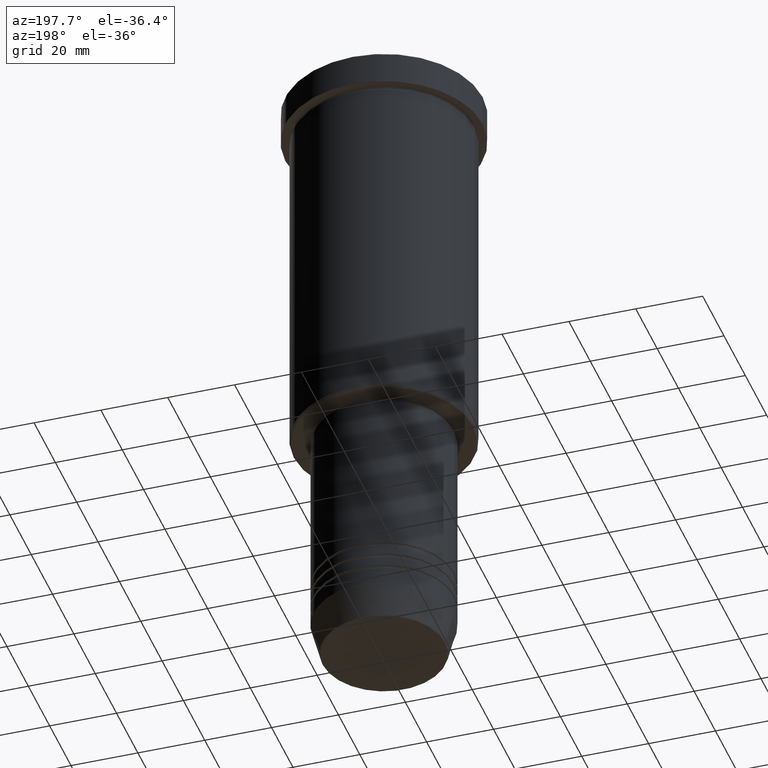
[diagram: clean part render]
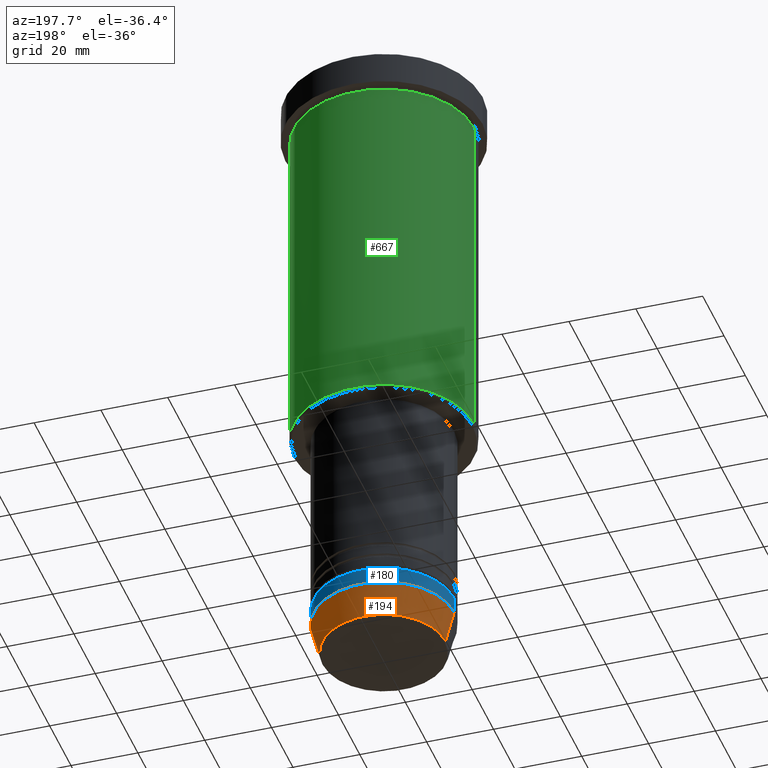
[diagram: same view with three faces highlighted in distinct colors, each labeled with its STEP entity id]
A machine part, auxiliary view with three faces highlighted in distinct colors.
Their STEP definitions:

[orange] entity #194 — the highlighted conical surface has half-angle 15 deg.
#7 = CARTESIAN_POINT ( 'NONE',  ( 0.000000000000000000, 0.000000000000000000, -190.6294095225512706 ) ) ;
#25 = LINE ( 'NONE', #397, #940 ) ;
#124 = CARTESIAN_POINT ( 'NONE',  ( 0.000000000000000000, 0.000000000000000000, -181.0000000000000000 ) ) ;
#153 = ORIENTED_EDGE ( 'NONE', *, *, #937, .F. ) ;
#191 = ORIENTED_EDGE ( 'NONE', *, *, #439, .F. ) ;
#194 = ADVANCED_FACE ( 'NONE', ( #1122 ), #739, .T. ) ;
#203 = CARTESIAN_POINT ( 'NONE',  ( 21.00000000000000000, 0.000000000000000000, -181.0000000000000000 ) ) ;
#207 = ORIENTED_EDGE ( 'NONE', *, *, #905, .T. ) ;
#287 = LINE ( 'NONE', #203, #718 ) ;
#290 = CARTESIAN_POINT ( 'NONE',  ( -18.41980749484383040, 2.413767053578267064E-15, -190.6294095225512706 ) ) ;
#307 = CARTESIAN_POINT ( 'NONE',  ( 0.000000000000000000, 0.000000000000000000, -181.0000000000000000 ) ) ;
#326 = VERTEX_POINT ( 'NONE', #614 ) ;
#347 = DIRECTION ( 'NONE',  ( -0.000000000000000000, -0.000000000000000000, 1.000000000000000000 ) ) ;
#353 = VERTEX_POINT ( 'NONE', #889 ) ;
#380 = DIRECTION ( 'NONE',  ( 1.000000000000000000, 0.000000000000000000, 0.000000000000000000 ) ) ;
#397 = CARTESIAN_POINT ( 'NONE',  ( -21.00000000000000000, 2.571758278209441661E-15, -181.0000000000000000 ) ) ;
#439 = EDGE_CURVE ( 'NONE', #326, #802, #287, .T. ) ;
#492 = EDGE_CURVE ( 'NONE', #903, #353, #25, .T. ) ;
#527 = CIRCLE ( 'NONE', #789, 21.00000000000000000 ) ;
#591 = EDGE_LOOP ( 'NONE', ( #207, #972, #153, #191 ) ) ;
#614 = CARTESIAN_POINT ( 'NONE',  ( 18.41980749484383040, 0.000000000000000000, -190.6294095225512706 ) ) ;
#644 = CIRCLE ( 'NONE', #681, 18.41980749484383040 ) ;
#647 = CARTESIAN_POINT ( 'NONE',  ( 21.00000000000000000, 0.000000000000000000, -181.0000000000000000 ) ) ;
#658 = DIRECTION ( 'NONE',  ( -0.000000000000000000, -0.000000000000000000, 1.000000000000000000 ) ) ;
#674 = DIRECTION ( 'NONE',  ( -0.000000000000000000, -0.000000000000000000, 1.000000000000000000 ) ) ;
#681 = AXIS2_PLACEMENT_3D ( 'NONE', #7, #658, #380 ) ;
#718 = VECTOR ( 'NONE', #1030, 1000.000000000000114 ) ;
#739 = CONICAL_SURFACE ( 'NONE', #866, 21.00000000000000000, 0.2617993877991499074 ) ;
#751 = DIRECTION ( 'NONE',  ( -0.2588190451025211836, 3.169619151431770488E-17, 0.9659258262890680902 ) ) ;
#789 = AXIS2_PLACEMENT_3D ( 'NONE', #124, #347, #912 ) ;
#802 = VERTEX_POINT ( 'NONE', #647 ) ;
#866 = AXIS2_PLACEMENT_3D ( 'NONE', #307, #674, #1127 ) ;
#889 = CARTESIAN_POINT ( 'NONE',  ( -21.00000000000000000, 2.571758278209441661E-15, -181.0000000000000000 ) ) ;
#903 = VERTEX_POINT ( 'NONE', #290 ) ;
#905 = EDGE_CURVE ( 'NONE', #326, #903, #644, .T. ) ;
#912 = DIRECTION ( 'NONE',  ( 1.000000000000000000, 0.000000000000000000, 0.000000000000000000 ) ) ;
#937 = EDGE_CURVE ( 'NONE', #802, #353, #527, .T. ) ;
#940 = VECTOR ( 'NONE', #751, 1000.000000000000114 ) ;
#972 = ORIENTED_EDGE ( 'NONE', *, *, #492, .T. ) ;
#1030 = DIRECTION ( 'NONE',  ( 0.2588190451025211836, 0.000000000000000000, 0.9659258262890680902 ) ) ;
#1122 = FACE_OUTER_BOUND ( 'NONE', #591, .T. ) ;
#1127 = DIRECTION ( 'NONE',  ( 1.000000000000000000, 0.000000000000000000, 0.000000000000000000 ) ) ;

[blue] entity #180 — the highlighted cylindrical surface (partial cylindrical patch) has radius 21 mm, axis along (-0, -0, 1).
#124 = CARTESIAN_POINT ( 'NONE',  ( 0.000000000000000000, 0.000000000000000000, -181.0000000000000000 ) ) ;
#131 = EDGE_CURVE ( 'NONE', #353, #878, #200, .T. ) ;
#180 = ADVANCED_FACE ( 'NONE', ( #491 ), #415, .T. ) ;
#200 = LINE ( 'NONE', #566, #907 ) ;
#212 = DIRECTION ( 'NONE',  ( -0.000000000000000000, -0.000000000000000000, 1.000000000000000000 ) ) ;
#216 = EDGE_CURVE ( 'NONE', #1180, #878, #756, .T. ) ;
#251 = ORIENTED_EDGE ( 'NONE', *, *, #937, .T. ) ;
#329 = DIRECTION ( 'NONE',  ( -0.000000000000000000, -0.000000000000000000, 1.000000000000000000 ) ) ;
#347 = DIRECTION ( 'NONE',  ( -0.000000000000000000, -0.000000000000000000, 1.000000000000000000 ) ) ;
#353 = VERTEX_POINT ( 'NONE', #889 ) ;
#355 = CARTESIAN_POINT ( 'NONE',  ( 21.00000000000000000, 0.000000000000000000, 0.000000000000000000 ) ) ;
#359 = AXIS2_PLACEMENT_3D ( 'NONE', #764, #329, #599 ) ;
#393 = EDGE_CURVE ( 'NONE', #802, #1180, #448, .T. ) ;
#415 = CYLINDRICAL_SURFACE ( 'NONE', #359, 21.00000000000000000 ) ;
#448 = LINE ( 'NONE', #355, #530 ) ;
#453 = DIRECTION ( 'NONE',  ( -0.000000000000000000, -0.000000000000000000, 1.000000000000000000 ) ) ;
#491 = FACE_OUTER_BOUND ( 'NONE', #1145, .T. ) ;
#517 = CARTESIAN_POINT ( 'NONE',  ( 21.00000000000000000, 0.000000000000000000, -176.0000000000000284 ) ) ;
#527 = CIRCLE ( 'NONE', #789, 21.00000000000000000 ) ;
#530 = VECTOR ( 'NONE', #453, 1000.000000000000000 ) ;
#566 = CARTESIAN_POINT ( 'NONE',  ( -21.00000000000000000, 2.571758278209441661E-15, 0.000000000000000000 ) ) ;
#582 = DIRECTION ( 'NONE',  ( 1.000000000000000000, 0.000000000000000000, 0.000000000000000000 ) ) ;
#599 = DIRECTION ( 'NONE',  ( 1.000000000000000000, 0.000000000000000000, 0.000000000000000000 ) ) ;
#647 = CARTESIAN_POINT ( 'NONE',  ( 21.00000000000000000, 0.000000000000000000, -181.0000000000000000 ) ) ;
#756 = CIRCLE ( 'NONE', #1118, 21.00000000000000000 ) ;
#764 = CARTESIAN_POINT ( 'NONE',  ( 0.000000000000000000, 0.000000000000000000, 0.000000000000000000 ) ) ;
#779 = ORIENTED_EDGE ( 'NONE', *, *, #216, .F. ) ;
#785 = ORIENTED_EDGE ( 'NONE', *, *, #393, .F. ) ;
#789 = AXIS2_PLACEMENT_3D ( 'NONE', #124, #347, #912 ) ;
#800 = ORIENTED_EDGE ( 'NONE', *, *, #131, .T. ) ;
#802 = VERTEX_POINT ( 'NONE', #647 ) ;
#878 = VERTEX_POINT ( 'NONE', #1073 ) ;
#889 = CARTESIAN_POINT ( 'NONE',  ( -21.00000000000000000, 2.571758278209441661E-15, -181.0000000000000000 ) ) ;
#907 = VECTOR ( 'NONE', #932, 1000.000000000000000 ) ;
#912 = DIRECTION ( 'NONE',  ( 1.000000000000000000, 0.000000000000000000, 0.000000000000000000 ) ) ;
#932 = DIRECTION ( 'NONE',  ( -0.000000000000000000, -0.000000000000000000, 1.000000000000000000 ) ) ;
#937 = EDGE_CURVE ( 'NONE', #802, #353, #527, .T. ) ;
#1073 = CARTESIAN_POINT ( 'NONE',  ( -21.00000000000000000, 2.571758278209441661E-15, -176.0000000000000284 ) ) ;
#1118 = AXIS2_PLACEMENT_3D ( 'NONE', #1124, #212, #582 ) ;
#1124 = CARTESIAN_POINT ( 'NONE',  ( 0.000000000000000000, 0.000000000000000000, -176.0000000000000284 ) ) ;
#1145 = EDGE_LOOP ( 'NONE', ( #251, #800, #779, #785 ) ) ;
#1180 = VERTEX_POINT ( 'NONE', #517 ) ;

[green] entity #667 — the highlighted cylindrical surface (partial cylindrical patch) has radius 27 mm, axis along (-0, -0, 1).
#68 = CARTESIAN_POINT ( 'NONE',  ( -27.00000000000000355, 3.306546357697854128E-15, 0.000000000000000000 ) ) ;
#76 = CARTESIAN_POINT ( 'NONE',  ( 27.00000000000000355, 0.000000000000000000, 0.000000000000000000 ) ) ;
#81 = CARTESIAN_POINT ( 'NONE',  ( -27.00000000000000355, 3.306546357697854128E-15, -10.99999999999999289 ) ) ;
#87 = CIRCLE ( 'NONE', #1176, 27.00000000000000355 ) ;
#94 = DIRECTION ( 'NONE',  ( -0.000000000000000000, -0.000000000000000000, 1.000000000000000000 ) ) ;
#107 = AXIS2_PLACEMENT_3D ( 'NONE', #978, #94, #1011 ) ;
#119 = DIRECTION ( 'NONE',  ( -0.000000000000000000, -0.000000000000000000, 1.000000000000000000 ) ) ;
#155 = ORIENTED_EDGE ( 'NONE', *, *, #209, .T. ) ;
#162 = VECTOR ( 'NONE', #804, 1000.000000000000000 ) ;
#174 = EDGE_CURVE ( 'NONE', #1056, #1051, #87, .T. ) ;
#184 = EDGE_LOOP ( 'NONE', ( #155, #427, #554, #898 ) ) ;
#209 = EDGE_CURVE ( 'NONE', #868, #635, #629, .T. ) ;
#248 = DIRECTION ( 'NONE',  ( -0.000000000000000000, -0.000000000000000000, 1.000000000000000000 ) ) ;
#250 = CYLINDRICAL_SURFACE ( 'NONE', #107, 27.00000000000000355 ) ;
#343 = EDGE_CURVE ( 'NONE', #635, #1051, #985, .T. ) ;
#408 = DIRECTION ( 'NONE',  ( 1.000000000000000000, 0.000000000000000000, 0.000000000000000000 ) ) ;
#424 = CARTESIAN_POINT ( 'NONE',  ( 0.000000000000000000, 0.000000000000000000, -10.99999999999999289 ) ) ;
#427 = ORIENTED_EDGE ( 'NONE', *, *, #343, .T. ) ;
#440 = CARTESIAN_POINT ( 'NONE',  ( -27.00000000000000355, 3.306546357697854128E-15, -115.4999999999999716 ) ) ;
#456 = AXIS2_PLACEMENT_3D ( 'NONE', #1035, #576, #850 ) ;
#523 = LINE ( 'NONE', #76, #162 ) ;
#554 = ORIENTED_EDGE ( 'NONE', *, *, #174, .F. ) ;
#576 = DIRECTION ( 'NONE',  ( -0.000000000000000000, -0.000000000000000000, 1.000000000000000000 ) ) ;
#620 = EDGE_CURVE ( 'NONE', #868, #1056, #523, .T. ) ;
#629 = CIRCLE ( 'NONE', #456, 27.00000000000000355 ) ;
#635 = VERTEX_POINT ( 'NONE', #440 ) ;
#667 = ADVANCED_FACE ( 'NONE', ( #799 ), #250, .T. ) ;
#724 = CARTESIAN_POINT ( 'NONE',  ( 27.00000000000000355, 0.000000000000000000, -115.4999999999999716 ) ) ;
#799 = FACE_OUTER_BOUND ( 'NONE', #184, .T. ) ;
#804 = DIRECTION ( 'NONE',  ( -0.000000000000000000, -0.000000000000000000, 1.000000000000000000 ) ) ;
#808 = CARTESIAN_POINT ( 'NONE',  ( 27.00000000000000355, 0.000000000000000000, -10.99999999999999289 ) ) ;
#850 = DIRECTION ( 'NONE',  ( -1.000000000000000000, 0.000000000000000000, 0.000000000000000000 ) ) ;
#868 = VERTEX_POINT ( 'NONE', #724 ) ;
#898 = ORIENTED_EDGE ( 'NONE', *, *, #620, .F. ) ;
#978 = CARTESIAN_POINT ( 'NONE',  ( 0.000000000000000000, 0.000000000000000000, 0.000000000000000000 ) ) ;
#985 = LINE ( 'NONE', #68, #1044 ) ;
#1011 = DIRECTION ( 'NONE',  ( 1.000000000000000000, 0.000000000000000000, 0.000000000000000000 ) ) ;
#1035 = CARTESIAN_POINT ( 'NONE',  ( 0.000000000000000000, 0.000000000000000000, -115.4999999999999716 ) ) ;
#1044 = VECTOR ( 'NONE', #248, 1000.000000000000000 ) ;
#1051 = VERTEX_POINT ( 'NONE', #81 ) ;
#1056 = VERTEX_POINT ( 'NONE', #808 ) ;
#1176 = AXIS2_PLACEMENT_3D ( 'NONE', #424, #119, #408 ) ;